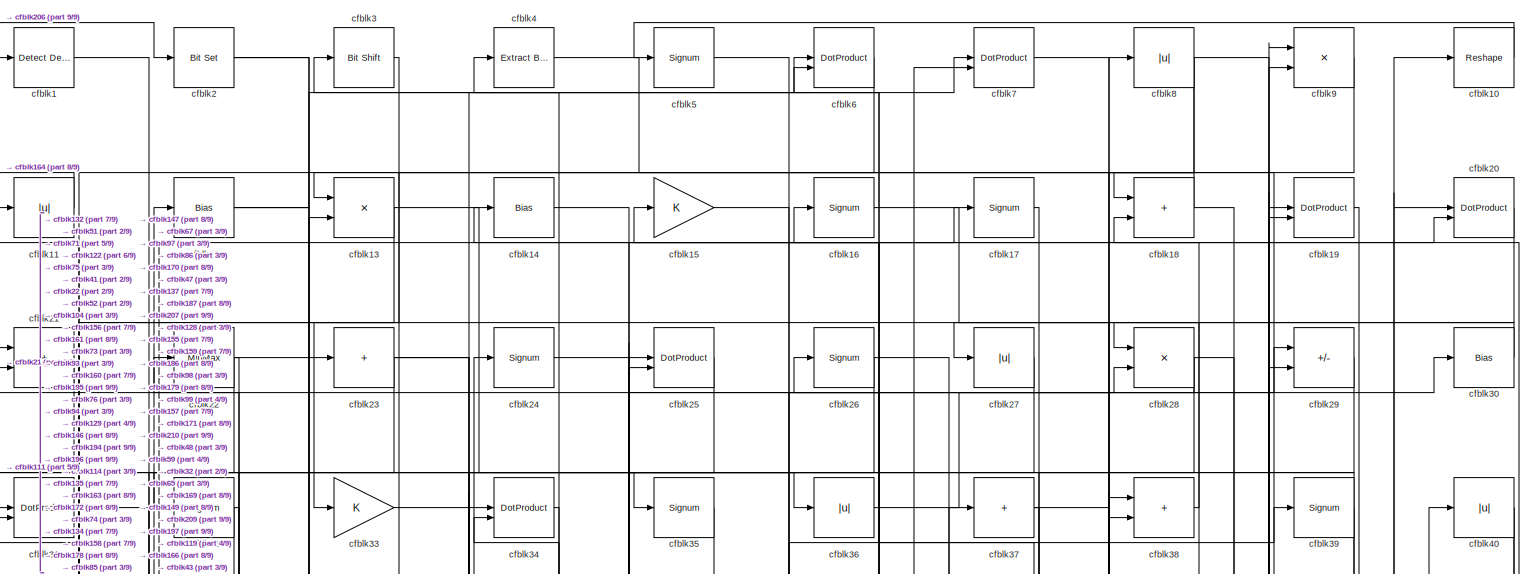
[diagram: root canvas - part 1/9, full width, top band]
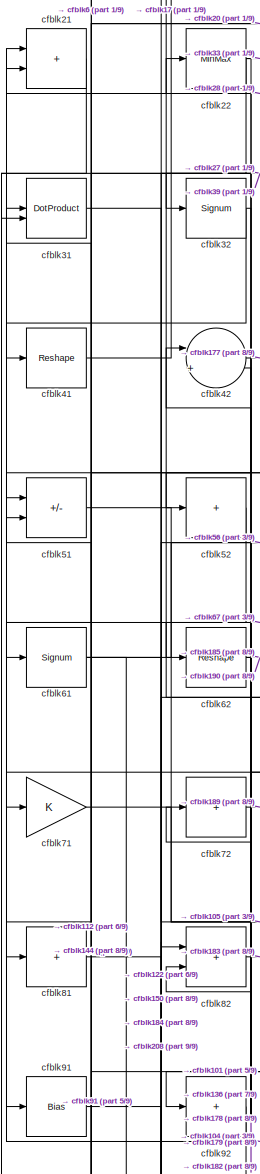
[diagram: root canvas - part 2/9, top left region]
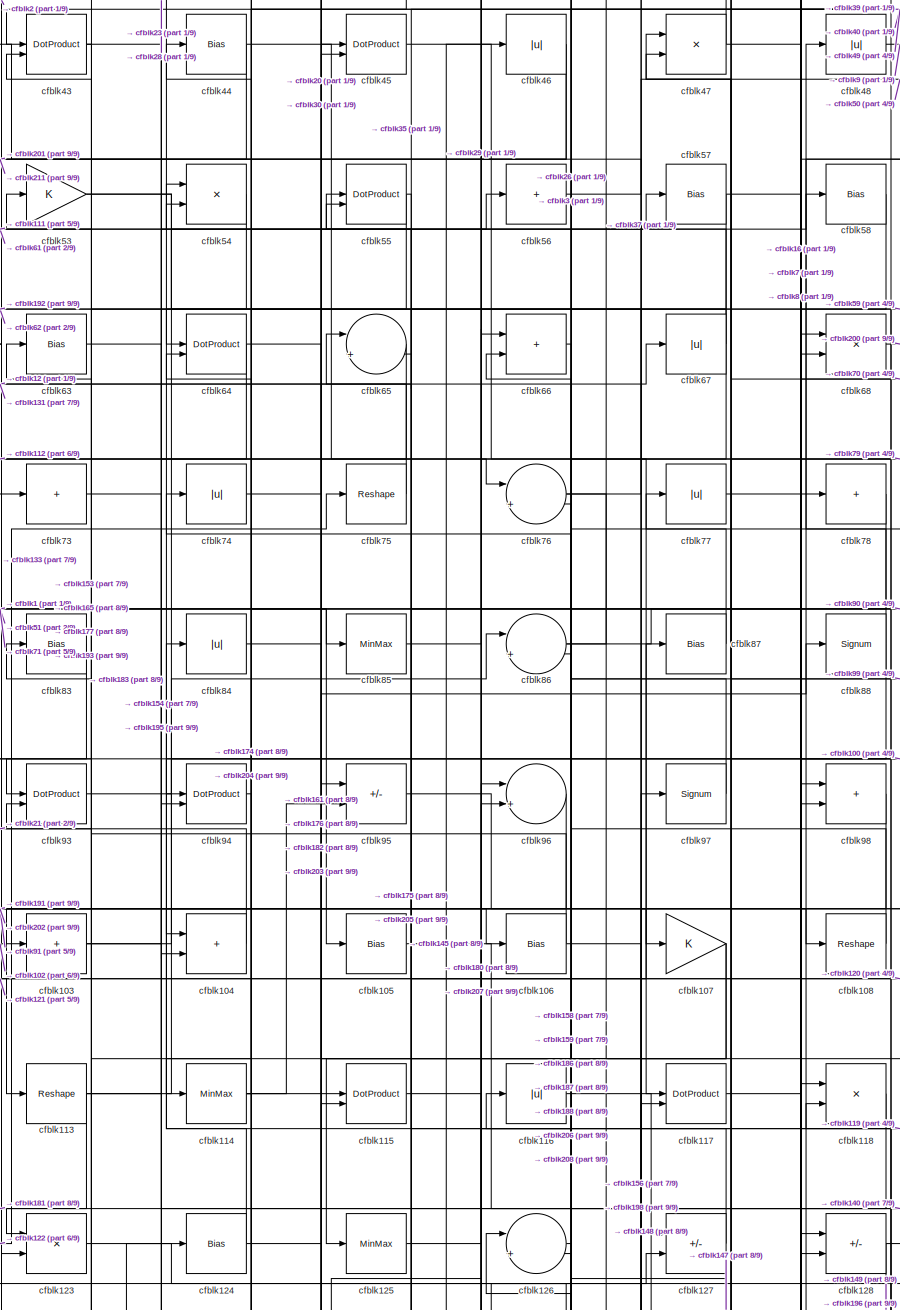
[diagram: root canvas - part 3/9, central region]
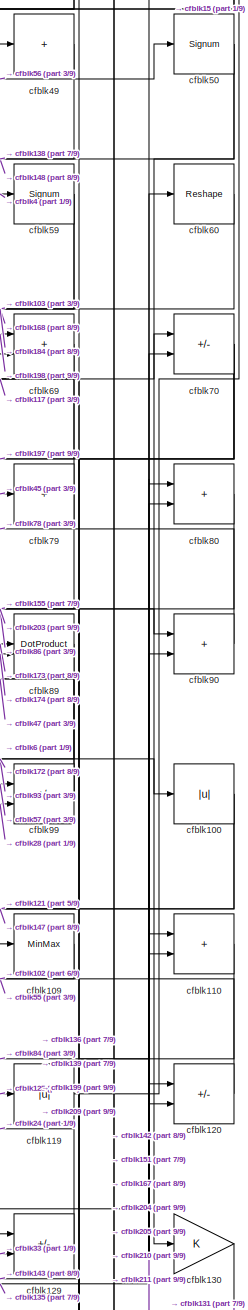
[diagram: root canvas - part 4/9, middle right region]
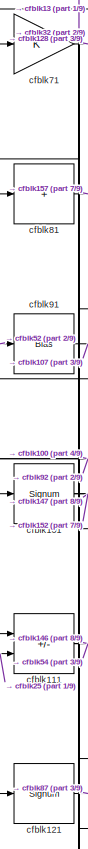
[diagram: root canvas - part 5/9, middle left region]
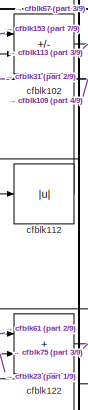
[diagram: root canvas - part 6/9, middle left region]
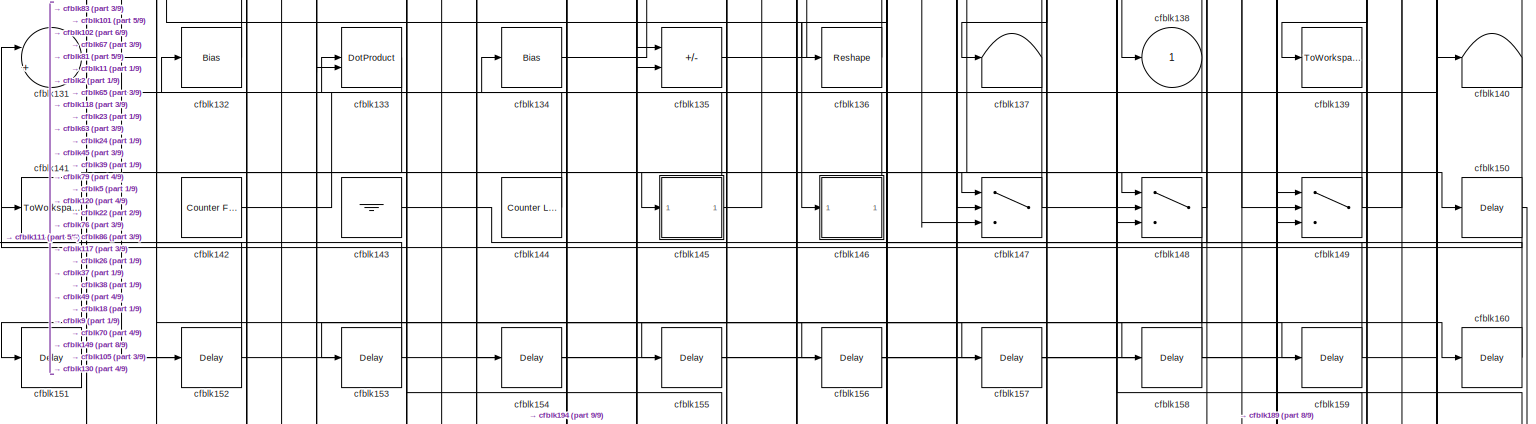
[diagram: root canvas - part 7/9, full width, middle band]
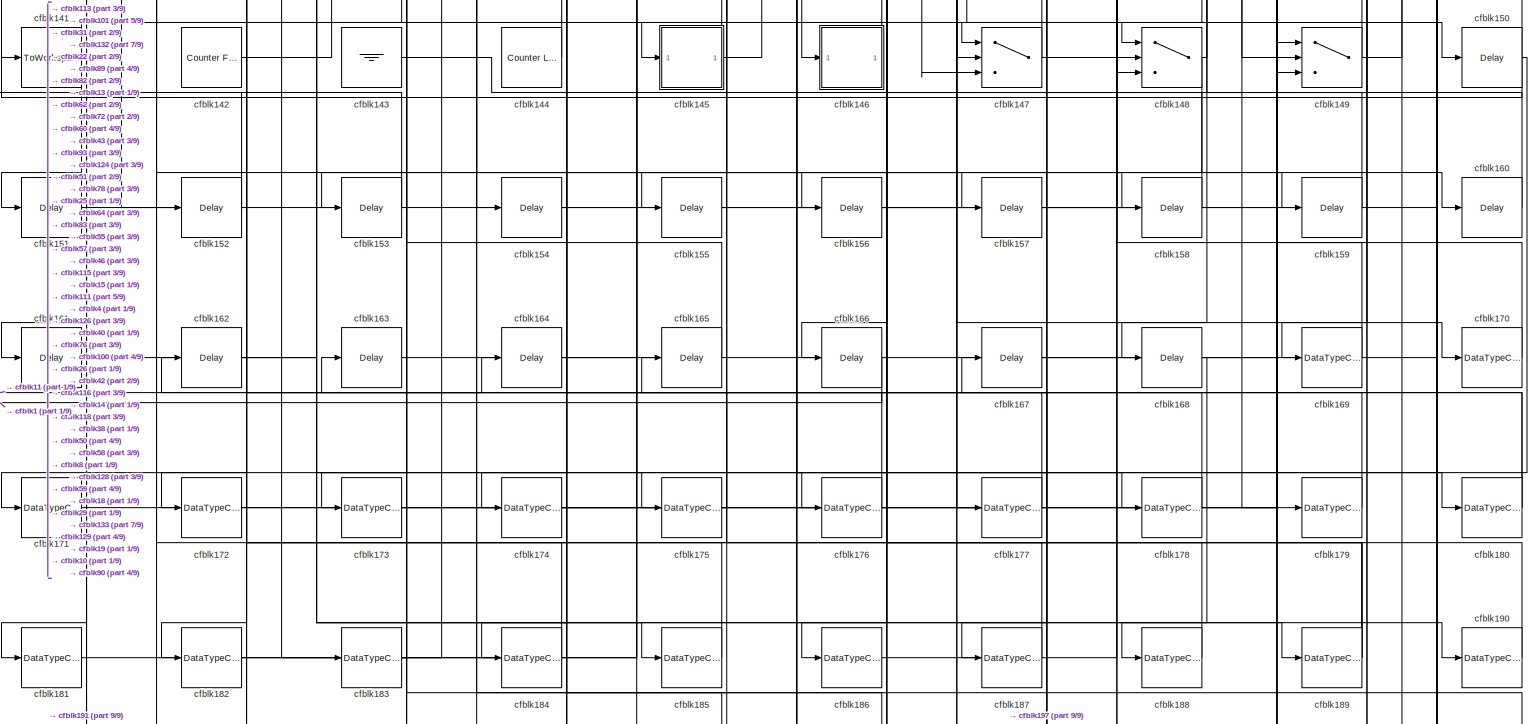
[diagram: root canvas - part 8/9, full width, bottom band]
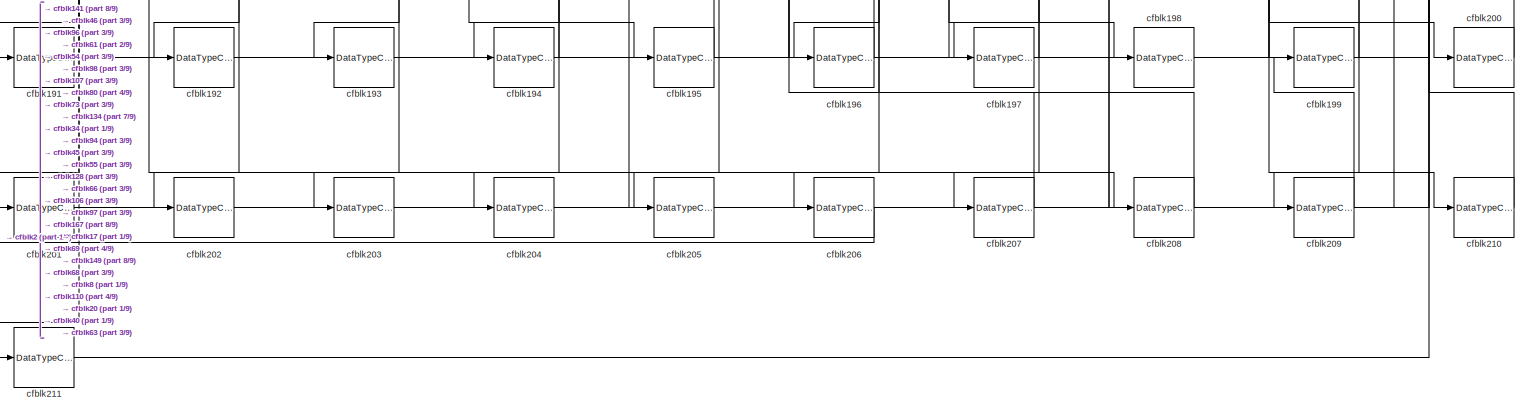
[diagram: root canvas - part 9/9, full width, bottom band]
MODEL slx_6e21df6c2feb
KIND model
CONFIG AbsTol = auto
CONFIG EnableMultiTasking = off
CONFIG FixedStep = auto
CONFIG MaxStep = auto
CONFIG MinStep = auto
CONFIG RelTol = 1e-3
CONFIG SampleTimeConstraint = Unconstrained
CONFIG SolverName = VariableStepAuto
CONFIG StartTime = 0.0
CONFIG StopTime = 10.0
BLOCK [Reference] cfblk1  REF=simulink/Logic and Bit
Operations/Detect
Decrease
  LibrarySourceBlock = hdlsllib/Logic and Bit\nOperations/Detect\nDecrease
  SourceBlock = simulink/Logic and Bit\nOperations/Detect\nDecrease
  SourceType = Detect Decrease
BLOCK [Reshape] cfblk10
BLOCK [Abs] cfblk100
  SaturateOnIntegerOverflow = off
BLOCK [Signum] cfblk101
BLOCK [Sum] cfblk102
  IconShape = rectangular
  Inputs = +-
BLOCK [Sum] cfblk103
  IconShape = rectangular
  Inputs = +
BLOCK [Sum] cfblk104
  IconShape = rectangular
BLOCK [Bias] cfblk105
  Bias = 0.0
  SaturateOnIntegerOverflow = off
BLOCK [Bias] cfblk106
  Bias = 0.0
  SaturateOnIntegerOverflow = off
BLOCK [Gain] cfblk107
BLOCK [Reshape] cfblk108
BLOCK [MinMax] cfblk109
BLOCK [Abs] cfblk11
  SaturateOnIntegerOverflow = off
BLOCK [Sum] cfblk110
  IconShape = rectangular
BLOCK [Sum] cfblk111
  IconShape = rectangular
  Inputs = +-
BLOCK [Abs] cfblk112
  SaturateOnIntegerOverflow = off
BLOCK [Reshape] cfblk113
BLOCK [MinMax] cfblk114
BLOCK [DotProduct] cfblk115
  OutDataTypeStr = Inherit: Inherit via internal rule
BLOCK [Abs] cfblk116
  SaturateOnIntegerOverflow = off
BLOCK [DotProduct] cfblk117
  OutDataTypeStr = Inherit: Inherit via internal rule
BLOCK [Product] cfblk118
  Inputs = */
  RndMeth = Zero
  SaturateOnIntegerOverflow = on
BLOCK [Abs] cfblk119
  SaturateOnIntegerOverflow = off
BLOCK [Bias] cfblk12
  Bias = 0.0
  SaturateOnIntegerOverflow = off
BLOCK [Sum] cfblk120
  IconShape = rectangular
  Inputs = +-
BLOCK [Signum] cfblk121
BLOCK [Sum] cfblk122
  IconShape = rectangular
BLOCK [Product] cfblk123
  Inputs = */
  RndMeth = Zero
  SaturateOnIntegerOverflow = on
BLOCK [Bias] cfblk124
  Bias = 0.0
  SaturateOnIntegerOverflow = off
BLOCK [MinMax] cfblk125
BLOCK [Sum] cfblk126
  Inputs = |++
BLOCK [Sum] cfblk127
  IconShape = rectangular
  Inputs = +-
BLOCK [Sum] cfblk128
  IconShape = rectangular
  Inputs = +-
BLOCK [Sum] cfblk129
  IconShape = rectangular
  Inputs = +-
BLOCK [Product] cfblk13
  Inputs = */
  RndMeth = Zero
  SaturateOnIntegerOverflow = on
BLOCK [Gain] cfblk130
BLOCK [Sum] cfblk131
  Inputs = |++
BLOCK [Bias] cfblk132
  Bias = 0.0
  SaturateOnIntegerOverflow = off
BLOCK [DotProduct] cfblk133
  OutDataTypeStr = Inherit: Inherit via internal rule
BLOCK [Bias] cfblk134
  Bias = 0.0
  SaturateOnIntegerOverflow = off
BLOCK [Sum] cfblk135
  IconShape = rectangular
  Inputs = +-
BLOCK [Reshape] cfblk136
BLOCK [Terminator] cfblk137
BLOCK [Outport] cfblk138
  VectorParamsAs1DForOutWhenUnconnected = off
BLOCK [ToWorkspace] cfblk139
  MaxDataPoints = inf
  SampleTime = -1
  SaveFormat = Timeseries
  VariableName = simout
BLOCK [Bias] cfblk14
  Bias = 0.0
  SaturateOnIntegerOverflow = off
BLOCK [Terminator] cfblk140
BLOCK [ToWorkspace] cfblk141
  MaxDataPoints = inf
  SampleTime = -1
  SaveFormat = Timeseries
  VariableName = simout
BLOCK [Reference] cfblk142  REF=hdlsllib/Sources/Counter
Free-Running
  SourceBlock = hdlsllib/Sources/Counter\nFree-Running
  SourceType = Counter Free-Running
BLOCK [Ground] cfblk143
BLOCK [Reference] cfblk144  REF=hdlsllib/Sources/Counter
Limited
  SourceBlock = hdlsllib/Sources/Counter\nLimited
  SourceType = Counter Limited
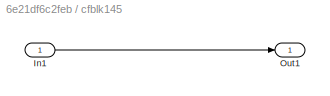
BLOCK [SubSystem] cfblk145
  LibrarySourceBlock = hdlsllib/Ports &\nSubsystems/Subsystem
BLOCK [Inport] cfblk145/In1
BLOCK [Outport] cfblk145/Out1
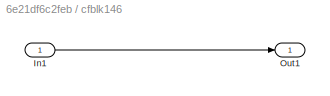
BLOCK [SubSystem] cfblk146
  LibrarySourceBlock = hdlsllib/Ports &\nSubsystems/Subsystem
BLOCK [Inport] cfblk146/In1
BLOCK [Outport] cfblk146/Out1
BLOCK [Switch] cfblk147
  InputSameDT = off
  SaturateOnIntegerOverflow = off
BLOCK [Switch] cfblk148
  InputSameDT = off
  SaturateOnIntegerOverflow = off
BLOCK [Switch] cfblk149
  InputSameDT = off
  SaturateOnIntegerOverflow = off
BLOCK [Gain] cfblk15
BLOCK [Delay] cfblk150
  InputPortMap = u0
  SampleTime = 1
BLOCK [Delay] cfblk151
  InputPortMap = u0
  SampleTime = 1
BLOCK [Delay] cfblk152
  InputPortMap = u0
  SampleTime = 1
BLOCK [Delay] cfblk153
  InputPortMap = u0
  SampleTime = 1
BLOCK [Delay] cfblk154
  InputPortMap = u0
  SampleTime = 1
BLOCK [Delay] cfblk155
  InputPortMap = u0
  SampleTime = 1
BLOCK [Delay] cfblk156
  InputPortMap = u0
  SampleTime = 1
BLOCK [Delay] cfblk157
  InputPortMap = u0
  SampleTime = 1
BLOCK [Delay] cfblk158
  InputPortMap = u0
  SampleTime = 1
BLOCK [Delay] cfblk159
  InputPortMap = u0
  SampleTime = 1
BLOCK [Signum] cfblk16
BLOCK [Delay] cfblk160
  InputPortMap = u0
  SampleTime = 1
BLOCK [Delay] cfblk161
  InputPortMap = u0
  SampleTime = 1
BLOCK [Delay] cfblk162
  InputPortMap = u0
  SampleTime = 1
BLOCK [Delay] cfblk163
  InputPortMap = u0
  SampleTime = 1
BLOCK [Delay] cfblk164
  InputPortMap = u0
  SampleTime = 1
BLOCK [Delay] cfblk165
  InputPortMap = u0
  SampleTime = 1
BLOCK [Delay] cfblk166
  InputPortMap = u0
  SampleTime = 1
BLOCK [Delay] cfblk167
  InputPortMap = u0
  SampleTime = 1
BLOCK [Delay] cfblk168
  InputPortMap = u0
  SampleTime = 1
BLOCK [DataTypeConversion] cfblk169
  OutDataTypeStr = uint8
  RndMeth = Floor
  SaturateOnIntegerOverflow = off
BLOCK [Signum] cfblk17
BLOCK [DataTypeConversion] cfblk170
  OutDataTypeStr = uint8
  RndMeth = Floor
  SaturateOnIntegerOverflow = off
BLOCK [DataTypeConversion] cfblk171
  OutDataTypeStr = uint8
  RndMeth = Floor
  SaturateOnIntegerOverflow = off
BLOCK [DataTypeConversion] cfblk172
  OutDataTypeStr = uint8
  RndMeth = Floor
  SaturateOnIntegerOverflow = off
BLOCK [DataTypeConversion] cfblk173
  OutDataTypeStr = uint8
  RndMeth = Floor
  SaturateOnIntegerOverflow = off
BLOCK [DataTypeConversion] cfblk174
  OutDataTypeStr = uint8
  RndMeth = Floor
  SaturateOnIntegerOverflow = off
BLOCK [DataTypeConversion] cfblk175
  OutDataTypeStr = uint8
  RndMeth = Floor
  SaturateOnIntegerOverflow = off
BLOCK [DataTypeConversion] cfblk176
  OutDataTypeStr = uint8
  RndMeth = Floor
  SaturateOnIntegerOverflow = off
BLOCK [DataTypeConversion] cfblk177
  OutDataTypeStr = uint8
  RndMeth = Floor
  SaturateOnIntegerOverflow = off
BLOCK [DataTypeConversion] cfblk178
  OutDataTypeStr = uint8
  RndMeth = Floor
  SaturateOnIntegerOverflow = off
BLOCK [DataTypeConversion] cfblk179
  OutDataTypeStr = uint8
  RndMeth = Floor
  SaturateOnIntegerOverflow = off
BLOCK [Sum] cfblk18
  IconShape = rectangular
BLOCK [DataTypeConversion] cfblk180
  RndMeth = Floor
  SaturateOnIntegerOverflow = off
BLOCK [DataTypeConversion] cfblk181
  OutDataTypeStr = uint8
  RndMeth = Floor
  SaturateOnIntegerOverflow = off
BLOCK [DataTypeConversion] cfblk182
  OutDataTypeStr = uint8
  RndMeth = Floor
  SaturateOnIntegerOverflow = off
BLOCK [DataTypeConversion] cfblk183
  RndMeth = Floor
  SaturateOnIntegerOverflow = off
BLOCK [DataTypeConversion] cfblk184
  OutDataTypeStr = uint8
  RndMeth = Floor
  SaturateOnIntegerOverflow = off
BLOCK [DataTypeConversion] cfblk185
  OutDataTypeStr = uint8
  RndMeth = Floor
  SaturateOnIntegerOverflow = off
BLOCK [DataTypeConversion] cfblk186
  OutDataTypeStr = uint8
  RndMeth = Floor
  SaturateOnIntegerOverflow = off
BLOCK [DataTypeConversion] cfblk187
  OutDataTypeStr = uint8
  RndMeth = Floor
  SaturateOnIntegerOverflow = off
BLOCK [DataTypeConversion] cfblk188
  OutDataTypeStr = uint8
  RndMeth = Floor
  SaturateOnIntegerOverflow = off
BLOCK [DataTypeConversion] cfblk189
  RndMeth = Floor
  SaturateOnIntegerOverflow = off
BLOCK [DotProduct] cfblk19
  OutDataTypeStr = Inherit: Inherit via internal rule
BLOCK [DataTypeConversion] cfblk190
  OutDataTypeStr = uint8
  RndMeth = Floor
  SaturateOnIntegerOverflow = off
BLOCK [DataTypeConversion] cfblk191
  RndMeth = Floor
  SaturateOnIntegerOverflow = off
BLOCK [DataTypeConversion] cfblk192
  OutDataTypeStr = uint8
  RndMeth = Floor
  SaturateOnIntegerOverflow = off
BLOCK [DataTypeConversion] cfblk193
  OutDataTypeStr = uint8
  RndMeth = Floor
  SaturateOnIntegerOverflow = off
BLOCK [DataTypeConversion] cfblk194
  OutDataTypeStr = uint8
  RndMeth = Floor
  SaturateOnIntegerOverflow = off
BLOCK [DataTypeConversion] cfblk195
  OutDataTypeStr = uint8
  RndMeth = Floor
  SaturateOnIntegerOverflow = off
BLOCK [DataTypeConversion] cfblk196
  OutDataTypeStr = uint8
  RndMeth = Floor
  SaturateOnIntegerOverflow = off
BLOCK [DataTypeConversion] cfblk197
  RndMeth = Floor
  SaturateOnIntegerOverflow = off
BLOCK [DataTypeConversion] cfblk198
  OutDataTypeStr = uint8
  RndMeth = Floor
  SaturateOnIntegerOverflow = off
BLOCK [DataTypeConversion] cfblk199
  OutDataTypeStr = uint8
  RndMeth = Floor
  SaturateOnIntegerOverflow = off
BLOCK [Reference] cfblk2  REF=simulink/Logic and Bit
Operations/Bit Set
  LibrarySourceBlock = hdlsllib/Logic and Bit\nOperations/Bit Set
  SourceBlock = simulink/Logic and Bit\nOperations/Bit Set
  SourceType = Bit Set
BLOCK [DotProduct] cfblk20
  OutDataTypeStr = Inherit: Inherit via internal rule
BLOCK [DataTypeConversion] cfblk200
  OutDataTypeStr = uint8
  RndMeth = Floor
  SaturateOnIntegerOverflow = off
BLOCK [DataTypeConversion] cfblk201
  OutDataTypeStr = uint8
  RndMeth = Floor
  SaturateOnIntegerOverflow = off
BLOCK [DataTypeConversion] cfblk202
  OutDataTypeStr = uint8
  RndMeth = Floor
  SaturateOnIntegerOverflow = off
BLOCK [DataTypeConversion] cfblk203
  OutDataTypeStr = uint8
  RndMeth = Floor
  SaturateOnIntegerOverflow = off
BLOCK [DataTypeConversion] cfblk204
  OutDataTypeStr = uint8
  RndMeth = Floor
  SaturateOnIntegerOverflow = off
BLOCK [DataTypeConversion] cfblk205
  OutDataTypeStr = uint8
  RndMeth = Floor
  SaturateOnIntegerOverflow = off
BLOCK [DataTypeConversion] cfblk206
  OutDataTypeStr = uint8
  RndMeth = Floor
  SaturateOnIntegerOverflow = off
BLOCK [DataTypeConversion] cfblk207
  OutDataTypeStr = uint8
  RndMeth = Floor
  SaturateOnIntegerOverflow = off
BLOCK [DataTypeConversion] cfblk208
  OutDataTypeStr = uint8
  RndMeth = Floor
  SaturateOnIntegerOverflow = off
BLOCK [DataTypeConversion] cfblk209
  RndMeth = Floor
  SaturateOnIntegerOverflow = off
BLOCK [Sum] cfblk21
  IconShape = rectangular
BLOCK [DataTypeConversion] cfblk210
  OutDataTypeStr = uint8
  RndMeth = Floor
  SaturateOnIntegerOverflow = off
BLOCK [DataTypeConversion] cfblk211
  OutDataTypeStr = uint8
  RndMeth = Floor
  SaturateOnIntegerOverflow = off
BLOCK [MinMax] cfblk22
BLOCK [Sum] cfblk23
  IconShape = rectangular
  Inputs = +
BLOCK [Signum] cfblk24
BLOCK [DotProduct] cfblk25
  OutDataTypeStr = Inherit: Inherit via internal rule
BLOCK [Signum] cfblk26
BLOCK [Abs] cfblk27
  SaturateOnIntegerOverflow = off
BLOCK [Product] cfblk28
  Inputs = */
  RndMeth = Zero
  SaturateOnIntegerOverflow = on
BLOCK [Sum] cfblk29
  IconShape = rectangular
  Inputs = +-
BLOCK [Reference] cfblk3  REF=hdlsllib/Logic and Bit
Operations/Bit Shift
  SourceBlock = hdlsllib/Logic and Bit\nOperations/Bit Shift
  SourceType = Bit Shift
BLOCK [Bias] cfblk30
  Bias = 0.0
  SaturateOnIntegerOverflow = off
BLOCK [DotProduct] cfblk31
  OutDataTypeStr = Inherit: Inherit via internal rule
BLOCK [Signum] cfblk32
BLOCK [Gain] cfblk33
BLOCK [DotProduct] cfblk34
  OutDataTypeStr = Inherit: Inherit via internal rule
BLOCK [Signum] cfblk35
BLOCK [Abs] cfblk36
  SaturateOnIntegerOverflow = off
BLOCK [Sum] cfblk37
  IconShape = rectangular
  Inputs = +
BLOCK [Sum] cfblk38
  IconShape = rectangular
BLOCK [Signum] cfblk39
BLOCK [Reference] cfblk4  REF=simulink/Logic and Bit
Operations/Extract Bits
  LibrarySourceBlock = hdlsllib/Logic and Bit\nOperations/Extract Bits
  SourceBlock = simulink/Logic and Bit\nOperations/Extract Bits
  SourceType = Extract Bits
BLOCK [Abs] cfblk40
  SaturateOnIntegerOverflow = off
BLOCK [Reshape] cfblk41
BLOCK [Sum] cfblk42
  Inputs = |++
BLOCK [DotProduct] cfblk43
  OutDataTypeStr = Inherit: Inherit via internal rule
BLOCK [Bias] cfblk44
  Bias = 0.0
  SaturateOnIntegerOverflow = off
BLOCK [DotProduct] cfblk45
  OutDataTypeStr = Inherit: Inherit via internal rule
BLOCK [Abs] cfblk46
  SaturateOnIntegerOverflow = off
BLOCK [Product] cfblk47
  Inputs = */
  RndMeth = Zero
  SaturateOnIntegerOverflow = on
BLOCK [Abs] cfblk48
  SaturateOnIntegerOverflow = off
BLOCK [Sum] cfblk49
  IconShape = rectangular
  Inputs = +
BLOCK [Signum] cfblk5
BLOCK [Signum] cfblk50
BLOCK [Sum] cfblk51
  IconShape = rectangular
  Inputs = +-
BLOCK [Sum] cfblk52
  IconShape = rectangular
  Inputs = +
BLOCK [Gain] cfblk53
BLOCK [Product] cfblk54
  Inputs = */
  RndMeth = Zero
  SaturateOnIntegerOverflow = on
BLOCK [DotProduct] cfblk55
  OutDataTypeStr = Inherit: Inherit via internal rule
BLOCK [Sum] cfblk56
  IconShape = rectangular
  Inputs = +
BLOCK [Bias] cfblk57
  Bias = 0.0
  SaturateOnIntegerOverflow = off
BLOCK [Bias] cfblk58
  Bias = 0.0
  SaturateOnIntegerOverflow = off
BLOCK [Signum] cfblk59
BLOCK [DotProduct] cfblk6
  OutDataTypeStr = Inherit: Inherit via internal rule
BLOCK [Reshape] cfblk60
BLOCK [Signum] cfblk61
BLOCK [Reshape] cfblk62
BLOCK [Bias] cfblk63
  Bias = 0.0
  SaturateOnIntegerOverflow = off
BLOCK [DotProduct] cfblk64
  OutDataTypeStr = Inherit: Inherit via internal rule
BLOCK [Sum] cfblk65
  Inputs = |++
BLOCK [Sum] cfblk66
  IconShape = rectangular
BLOCK [Abs] cfblk67
  SaturateOnIntegerOverflow = off
BLOCK [Product] cfblk68
  Inputs = */
  RndMeth = Zero
  SaturateOnIntegerOverflow = on
BLOCK [Sum] cfblk69
  IconShape = rectangular
BLOCK [DotProduct] cfblk7
  OutDataTypeStr = Inherit: Inherit via internal rule
BLOCK [Sum] cfblk70
  IconShape = rectangular
  Inputs = +-
BLOCK [Gain] cfblk71
BLOCK [Sum] cfblk72
  IconShape = rectangular
  Inputs = +
BLOCK [Sum] cfblk73
  IconShape = rectangular
  Inputs = +
BLOCK [Abs] cfblk74
  SaturateOnIntegerOverflow = off
BLOCK [Reshape] cfblk75
BLOCK [Sum] cfblk76
  Inputs = |++
BLOCK [Abs] cfblk77
  SaturateOnIntegerOverflow = off
BLOCK [Sum] cfblk78
  IconShape = rectangular
  Inputs = +
BLOCK [Sum] cfblk79
  IconShape = rectangular
  Inputs = +
BLOCK [Abs] cfblk8
  SaturateOnIntegerOverflow = off
BLOCK [Sum] cfblk80
  IconShape = rectangular
BLOCK [Sum] cfblk81
  IconShape = rectangular
  Inputs = +
BLOCK [Sum] cfblk82
  IconShape = rectangular
BLOCK [Bias] cfblk83
  Bias = 0.0
  SaturateOnIntegerOverflow = off
BLOCK [Abs] cfblk84
  SaturateOnIntegerOverflow = off
BLOCK [MinMax] cfblk85
BLOCK [Sum] cfblk86
  Inputs = |++
BLOCK [Bias] cfblk87
  Bias = 0.0
  SaturateOnIntegerOverflow = off
BLOCK [Signum] cfblk88
BLOCK [DotProduct] cfblk89
  OutDataTypeStr = Inherit: Inherit via internal rule
BLOCK [Product] cfblk9
  Inputs = */
  RndMeth = Zero
  SaturateOnIntegerOverflow = on
BLOCK [Sum] cfblk90
  IconShape = rectangular
BLOCK [Bias] cfblk91
  Bias = 0.0
  SaturateOnIntegerOverflow = off
BLOCK [Sum] cfblk92
  IconShape = rectangular
  Inputs = +
BLOCK [DotProduct] cfblk93
  OutDataTypeStr = Inherit: Inherit via internal rule
BLOCK [DotProduct] cfblk94
  OutDataTypeStr = Inherit: Inherit via internal rule
BLOCK [Sum] cfblk95
  IconShape = rectangular
  Inputs = +-
BLOCK [Sum] cfblk96
  Inputs = |++
BLOCK [Signum] cfblk97
BLOCK [Sum] cfblk98
  IconShape = rectangular
BLOCK [Sum] cfblk99
  IconShape = rectangular
  Inputs = +-
NET cfblk100:1 -> cfblk121:1, cfblk147:2
NET cfblk101:1 -> cfblk147:1, cfblk152:1
LINE cfblk102:1 -> cfblk113:1
NET cfblk103:1 -> cfblk106:1, cfblk57:1
LINE cfblk104:1 -> cfblk21:1
LINE cfblk105:1 -> cfblk140:1
NET cfblk106:1 -> cfblk198:1, cfblk53:1
NET cfblk107:1 -> cfblk125:1, cfblk193:1
LINE cfblk108:1 -> cfblk74:1
LINE cfblk109:1 -> cfblk102:2
LINE cfblk10:1 -> cfblk5:1
LINE cfblk110:1 -> cfblk209:1
NET cfblk111:1 -> cfblk146:1, cfblk54:1
LINE cfblk112:1 -> cfblk31:1
NET cfblk113:1 -> cfblk181:1, cfblk58:1, cfblk86:1
NET cfblk114:1 -> cfblk20:2, cfblk44:1, cfblk95:2
LINE cfblk115:1 -> cfblk180:1
LINE cfblk116:1 -> cfblk148:1
LINE cfblk117:1 -> cfblk70:1
LINE cfblk118:1 -> cfblk153:1
LINE cfblk119:1 -> cfblk15:1
LINE cfblk11:1 -> cfblk164:1
LINE cfblk120:1 -> cfblk55:1
LINE cfblk121:1 -> cfblk87:1
LINE cfblk122:1 -> cfblk75:1
LINE cfblk123:1 -> cfblk127:2
NET cfblk124:1 -> cfblk84:1, cfblk88:1
LINE cfblk125:1 -> cfblk119:1
LINE cfblk126:1 -> cfblk186:1
LINE cfblk127:1 -> cfblk65:1
NET cfblk128:1 -> cfblk149:2, cfblk196:1
LINE cfblk129:1 -> cfblk24:1
NET cfblk12:1 -> cfblk6:1, cfblk73:1
LINE cfblk130:1 -> cfblk131:1
LINE cfblk131:1 -> cfblk67:1
LINE cfblk132:1 -> cfblk11:1
LINE cfblk133:1 -> cfblk151:1
LINE cfblk134:1 -> cfblk39:1
LINE cfblk135:1 -> cfblk120:1
LINE cfblk136:1 -> cfblk22:1
NET cfblk13:1 -> cfblk35:1, cfblk71:1
LINE cfblk142:1 -> cfblk60:1
LINE cfblk143:1 -> cfblk129:1
LINE cfblk144:1 -> cfblk51:2
LINE cfblk145/In1:1 -> cfblk145/Out1:1
NET cfblk145:1 -> cfblk46:1, cfblk83:1
LINE cfblk146/In1:1 -> cfblk146/Out1:1
LINE cfblk146:1 -> cfblk4:1
NET cfblk147:1 -> cfblk118:1, cfblk14:1
NET cfblk148:1 -> cfblk118:2, cfblk173:1
NET cfblk149:1 -> cfblk10:1, cfblk133:1
LINE cfblk14:1 -> cfblk36:1
LINE cfblk150:1 -> cfblk171:1
LINE cfblk151:1 -> cfblk70:2
LINE cfblk152:1 -> cfblk111:1
LINE cfblk153:1 -> cfblk102:1
LINE cfblk154:1 -> cfblk45:2
LINE cfblk155:1 -> cfblk38:2
LINE cfblk156:1 -> cfblk117:2
LINE cfblk157:1 -> cfblk9:2
LINE cfblk158:1 -> cfblk86:2
LINE cfblk159:1 -> cfblk76:2
LINE cfblk15:1 -> cfblk178:1
LINE cfblk160:1 -> cfblk18:2
LINE cfblk161:1 -> cfblk13:2
LINE cfblk162:1 -> cfblk175:1
LINE cfblk163:1 -> cfblk25:1
LINE cfblk164:1 -> cfblk29:2
LINE cfblk165:1 -> cfblk93:2
LINE cfblk166:1 -> cfblk1:1
LINE cfblk167:1 -> cfblk90:2
LINE cfblk168:1 -> cfblk188:1
LINE cfblk169:1 -> cfblk38:1
LINE cfblk16:1 -> cfblk98:1
LINE cfblk170:1 -> cfblk19:1
LINE cfblk171:1 -> cfblk19:2
LINE cfblk172:1 -> cfblk25:2
LINE cfblk173:1 -> cfblk89:1
LINE cfblk174:1 -> cfblk89:2
LINE cfblk175:1 -> cfblk55:2
LINE cfblk176:1 -> cfblk162:1
LINE cfblk177:1 -> cfblk43:2
LINE cfblk178:1 -> cfblk42:1
LINE cfblk179:1 -> cfblk42:2
LINE cfblk17:1 -> cfblk207:1
NET cfblk180:1 -> cfblk116:1, cfblk64:2
LINE cfblk181:1 -> cfblk115:1
LINE cfblk182:1 -> cfblk115:2
NET cfblk183:1 -> cfblk124:1, cfblk163:1
LINE cfblk184:1 -> cfblk82:1
LINE cfblk185:1 -> cfblk82:2
LINE cfblk186:1 -> cfblk8:1
LINE cfblk187:1 -> cfblk126:1
LINE cfblk188:1 -> cfblk126:2
NET cfblk189:1 -> cfblk132:1, cfblk149:1, cfblk165:1
NET cfblk18:1 -> cfblk13:1, cfblk179:1
LINE cfblk190:1 -> cfblk72:1
NET cfblk191:1 -> cfblk141:1, cfblk149:3, cfblk97:1
LINE cfblk192:1 -> cfblk96:1
LINE cfblk193:1 -> cfblk96:2
LINE cfblk194:1 -> cfblk134:1
LINE cfblk195:1 -> cfblk34:1
LINE cfblk196:1 -> cfblk34:2
NET cfblk197:1 -> cfblk167:1, cfblk40:1
LINE cfblk198:1 -> cfblk69:1
LINE cfblk199:1 -> cfblk69:2
LINE cfblk19:1 -> cfblk169:1
LINE cfblk1:1 -> cfblk85:1
LINE cfblk200:1 -> cfblk63:1
LINE cfblk201:1 -> cfblk68:1
LINE cfblk202:1 -> cfblk68:2
LINE cfblk203:1 -> cfblk45:1
LINE cfblk204:1 -> cfblk80:1
LINE cfblk205:1 -> cfblk80:2
LINE cfblk206:1 -> cfblk2:1
LINE cfblk207:1 -> cfblk66:1
LINE cfblk208:1 -> cfblk66:2
NET cfblk209:1 -> cfblk199:1, cfblk20:1
LINE cfblk20:1 -> cfblk51:1
LINE cfblk210:1 -> cfblk110:1
LINE cfblk211:1 -> cfblk110:2
LINE cfblk21:1 -> cfblk31:2
NET cfblk22:1 -> cfblk182:1, cfblk33:1, cfblk61:1
NET cfblk23:1 -> cfblk122:2, cfblk160:1, cfblk76:1
LINE cfblk24:1 -> cfblk135:1
LINE cfblk25:1 -> cfblk111:2
NET cfblk26:1 -> cfblk135:2, cfblk170:1
LINE cfblk27:1 -> cfblk52:1
NET cfblk28:1 -> cfblk21:2, cfblk94:2, cfblk99:2
LINE cfblk29:1 -> cfblk187:1
NET cfblk2:1 -> cfblk104:2, cfblk156:1
LINE cfblk30:1 -> cfblk28:1
LINE cfblk31:1 -> cfblk150:1
NET cfblk32:1 -> cfblk81:1, cfblk92:1
LINE cfblk33:1 -> cfblk129:2
LINE cfblk34:1 -> cfblk194:1
LINE cfblk35:1 -> cfblk114:1
LINE cfblk36:1 -> cfblk28:2
NET cfblk37:1 -> cfblk137:1, cfblk159:1
LINE cfblk38:1 -> cfblk27:1
NET cfblk39:1 -> cfblk104:1, cfblk32:1, cfblk65:2
LINE cfblk3:1 -> cfblk23:1
NET cfblk40:1 -> cfblk166:1, cfblk43:1
LINE cfblk41:1 -> cfblk17:1
LINE cfblk42:1 -> cfblk177:1
NET cfblk43:1 -> cfblk123:1, cfblk7:1
NET cfblk44:1 -> cfblk117:1, cfblk123:2
LINE cfblk45:1 -> cfblk79:1
NET cfblk46:1 -> cfblk201:1, cfblk211:1
NET cfblk47:1 -> cfblk16:1, cfblk49:1
LINE cfblk48:1 -> cfblk9:1
LINE cfblk49:1 -> cfblk138:1
LINE cfblk4:1 -> cfblk59:1
NET cfblk50:1 -> cfblk130:1, cfblk148:3
LINE cfblk51:1 -> cfblk105:1
LINE cfblk52:1 -> cfblk91:1
NET cfblk53:1 -> cfblk127:1, cfblk95:1
LINE cfblk54:1 -> cfblk192:1
NET cfblk55:1 -> cfblk205:1, cfblk64:1
LINE cfblk56:1 -> cfblk50:1
NET cfblk57:1 -> cfblk145:1, cfblk99:1
LINE cfblk58:1 -> cfblk148:2
NET cfblk59:1 -> cfblk103:1, cfblk168:1
LINE cfblk5:1 -> cfblk158:1
LINE cfblk60:1 -> cfblk184:1
NET cfblk61:1 -> cfblk122:1, cfblk208:1, cfblk56:1
NET cfblk62:1 -> cfblk185:1, cfblk190:1
LINE cfblk63:1 -> cfblk154:1
NET cfblk64:1 -> cfblk161:1, cfblk176:1
LINE cfblk65:1 -> cfblk133:2
LINE cfblk66:1 -> cfblk206:1
NET cfblk67:1 -> cfblk112:1, cfblk26:1, cfblk62:1
LINE cfblk68:1 -> cfblk200:1
LINE cfblk69:1 -> cfblk197:1
LINE cfblk6:1 -> cfblk41:1
NET cfblk70:1 -> cfblk109:1, cfblk136:1, cfblk139:1
LINE cfblk71:1 -> cfblk128:2
LINE cfblk72:1 -> cfblk189:1
LINE cfblk73:1 -> cfblk195:1
LINE cfblk74:1 -> cfblk30:1
LINE cfblk75:1 -> cfblk12:1
NET cfblk76:1 -> cfblk147:3, cfblk37:1
LINE cfblk77:1 -> cfblk48:1
LINE cfblk78:1 -> cfblk174:1
NET cfblk79:1 -> cfblk155:1, cfblk47:2
LINE cfblk7:1 -> cfblk128:1
LINE cfblk80:1 -> cfblk203:1
LINE cfblk81:1 -> cfblk157:1
LINE cfblk82:1 -> cfblk183:1
LINE cfblk83:1 -> cfblk131:2
LINE cfblk84:1 -> cfblk120:2
LINE cfblk85:1 -> cfblk29:1
NET cfblk86:1 -> cfblk7:2, cfblk90:1
LINE cfblk87:1 -> cfblk77:1
NET cfblk88:1 -> cfblk54:2, cfblk94:1
LINE cfblk89:1 -> cfblk172:1
NET cfblk8:1 -> cfblk210:1, cfblk93:1, cfblk98:2
LINE cfblk90:1 -> cfblk78:1
LINE cfblk91:1 -> cfblk107:1
LINE cfblk92:1 -> cfblk101:1
LINE cfblk93:1 -> cfblk100:1
LINE cfblk94:1 -> cfblk204:1
LINE cfblk95:1 -> cfblk108:1
LINE cfblk96:1 -> cfblk191:1
LINE cfblk97:1 -> cfblk3:1
LINE cfblk98:1 -> cfblk202:1
NET cfblk99:1 -> cfblk47:1, cfblk6:2
LINE cfblk9:1 -> cfblk18:1
note: NET lines group one-source signal fan-out (src -> all destinations, sorted); 1:1 wires keep LINE
